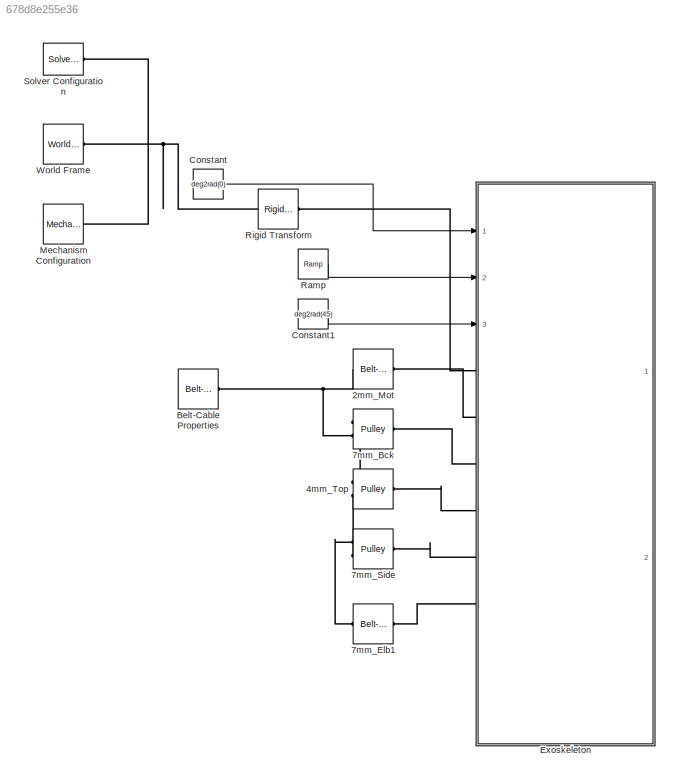
MODEL slx_678d8e255e36
KIND model
CONFIG AbsTol = 1e-3
CONFIG EnableMultiTasking = on
CONFIG FixedStep = auto
CONFIG MaxStep = auto
CONFIG MinStep = auto
CONFIG RelTol = 1e-3
CONFIG SampleTimeConstraint = Unconstrained
CONFIG SolverName = VariableStepAuto
CONFIG StartTime = 0.0
CONFIG StopTime = 10.0
BLOCK [Reference] 2mm_Mot  REF=sm_lib/Belts and Cables/Belt-Cable Spool
  Ports = [0, 0, 0, 0, 0, 1, 1]
  SourceBlock = sm_lib/Belts and Cables/Belt-Cable Spool
  SourceProductBaseCode = MS
  SourceType = Belt-Cable Spool
BLOCK [Reference] 4mm_Top  REF=sm_lib/Belts and Cables/Pulley
  Ports = [0, 0, 0, 0, 0, 1, 2]
  SourceBlock = sm_lib/Belts and Cables/Pulley
  SourceProductBaseCode = MS
  SourceType = Pulley
BLOCK [Reference] 7mm_Bck  REF=sm_lib/Belts and Cables/Pulley
  Ports = [0, 0, 0, 0, 0, 1, 2]
  SourceBlock = sm_lib/Belts and Cables/Pulley
  SourceProductBaseCode = MS
  SourceType = Pulley
BLOCK [Reference] 7mm_Elb1  REF=sm_lib/Belts and Cables/Belt-Cable Spool
  Ports = [0, 0, 0, 0, 0, 1, 1]
  SourceBlock = sm_lib/Belts and Cables/Belt-Cable Spool
  SourceProductBaseCode = MS
  SourceType = Belt-Cable Spool
BLOCK [Reference] 7mm_Side  REF=sm_lib/Belts and Cables/Pulley
  Ports = [0, 0, 0, 0, 0, 1, 2]
  SourceBlock = sm_lib/Belts and Cables/Pulley
  SourceProductBaseCode = MS
  SourceType = Pulley
BLOCK [Reference] Belt-Cable Properties  REF=sm_lib/Belts and Cables/Belt-Cable
Properties
  Ports = [0, 0, 0, 0, 0, 1]
  SourceBlock = sm_lib/Belts and Cables/Belt-Cable\nProperties
  SourceProductBaseCode = MS
  SourceType = Belt-Cable\nProperties
BLOCK [Constant] Constant
  Value = deg2rad(0)
BLOCK [Constant] Constant1
  Value = deg2rad(45)
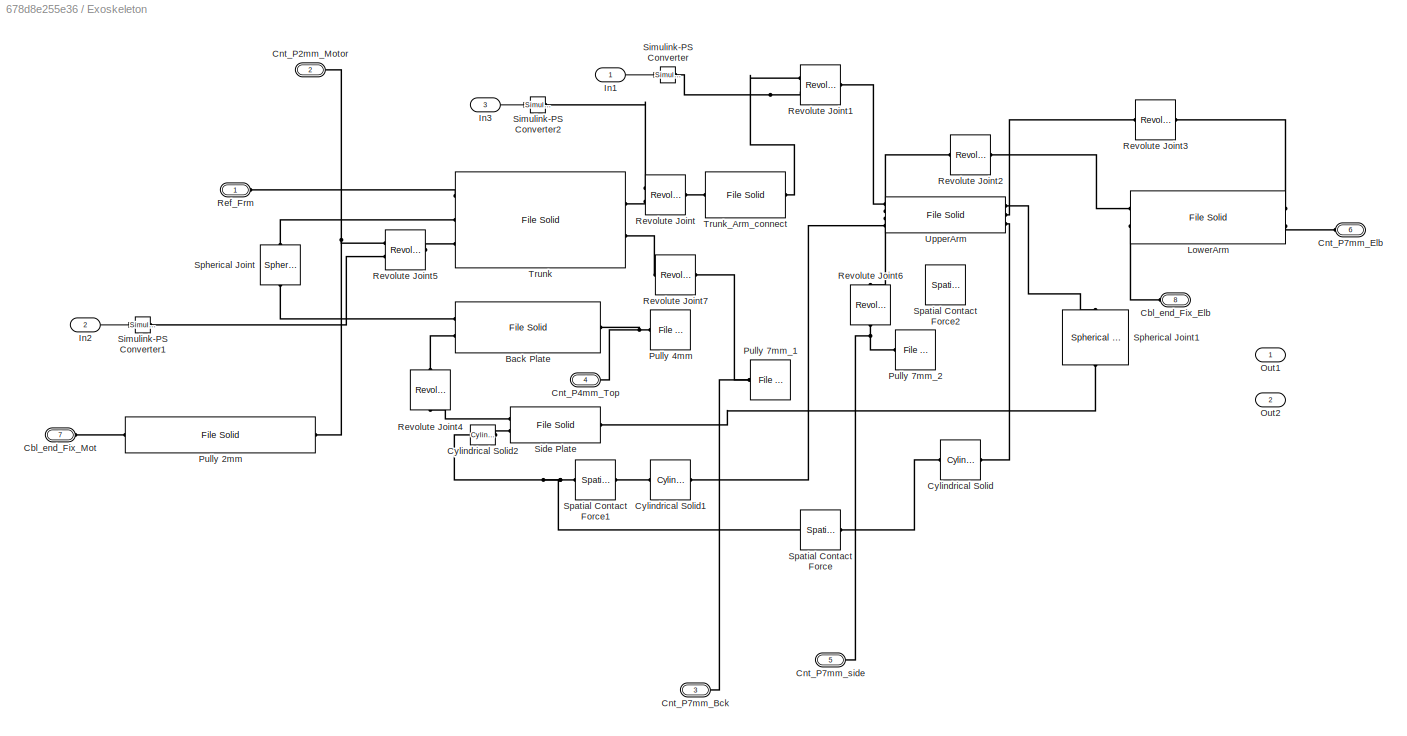
BLOCK [SubSystem] Exoskeleton
  Ports = [3, 2, 0, 0, 0, 8]
  RequestExecContextInheritance = off
BLOCK [Reference] Exoskeleton/Back Plate  REF=sm_lib/Body Elements/File Solid
  Ports = [0, 0, 0, 0, 0, 2, 1]
  SourceBlock = sm_lib/Body Elements/File Solid
  SourceProductBaseCode = MS
  SourceType = File Solid
BLOCK [PMIOPort] Exoskeleton/Cbl_end_Fix_Elb
  Port = 8
  Side = Left
BLOCK [PMIOPort] Exoskeleton/Cbl_end_Fix_Mot
  Port = 7
  Side = Left
BLOCK [PMIOPort] Exoskeleton/Cnt_P2mm_Motor
  Port = 2
  Side = Left
BLOCK [PMIOPort] Exoskeleton/Cnt_P4mm_Top
  Port = 4
  Side = Left
BLOCK [PMIOPort] Exoskeleton/Cnt_P7mm_Bck
  Port = 3
  Side = Left
BLOCK [PMIOPort] Exoskeleton/Cnt_P7mm_Elb
  Port = 6
  Side = Left
BLOCK [PMIOPort] Exoskeleton/Cnt_P7mm_side
  Port = 5
  Side = Left
BLOCK [Reference] Exoskeleton/Cylindrical Solid  REF=sm_lib/Body Elements/Cylindrical Solid
  Ports = [0, 0, 0, 0, 0, 1, 1]
  SourceBlock = sm_lib/Body Elements/Cylindrical Solid
  SourceProductBaseCode = MS
  SourceType = Cylindrical Solid
BLOCK [Reference] Exoskeleton/Cylindrical Solid1  REF=sm_lib/Body Elements/Cylindrical Solid
  Ports = [0, 0, 0, 0, 0, 1, 1]
  SourceBlock = sm_lib/Body Elements/Cylindrical Solid
  SourceProductBaseCode = MS
  SourceType = Cylindrical Solid
BLOCK [Reference] Exoskeleton/Cylindrical Solid2  REF=sm_lib/Body Elements/Cylindrical Solid
  Ports = [0, 0, 0, 0, 0, 1, 1]
  SourceBlock = sm_lib/Body Elements/Cylindrical Solid
  SourceProductBaseCode = MS
  SourceType = Cylindrical Solid
BLOCK [Inport] Exoskeleton/In1
BLOCK [Inport] Exoskeleton/In2
  Port = 2
BLOCK [Inport] Exoskeleton/In3
  Port = 3
BLOCK [Reference] Exoskeleton/LowerArm  REF=sm_lib/Body Elements/File Solid
  Ports = [0, 0, 0, 0, 0, 2, 2]
  SourceBlock = sm_lib/Body Elements/File Solid
  SourceProductBaseCode = MS
  SourceType = File Solid
BLOCK [Outport] Exoskeleton/Out1
BLOCK [Outport] Exoskeleton/Out2
  Port = 2
BLOCK [Reference] Exoskeleton/Pully 2mm  REF=sm_lib/Body Elements/File Solid
  Ports = [0, 0, 0, 0, 0, 1, 1]
  SourceBlock = sm_lib/Body Elements/File Solid
  SourceProductBaseCode = MS
  SourceType = File Solid
BLOCK [Reference] Exoskeleton/Pully 4mm  REF=sm_lib/Body Elements/File Solid
  Ports = [0, 0, 0, 0, 0, 1]
  SourceBlock = sm_lib/Body Elements/File Solid
  SourceProductBaseCode = MS
  SourceType = File Solid
BLOCK [Reference] Exoskeleton/Pully 7mm_1  REF=sm_lib/Body Elements/File Solid
  Ports = [0, 0, 0, 0, 0, 1]
  SourceBlock = sm_lib/Body Elements/File Solid
  SourceProductBaseCode = MS
  SourceType = File Solid
BLOCK [Reference] Exoskeleton/Pully 7mm_2  REF=sm_lib/Body Elements/File Solid
  Ports = [0, 0, 0, 0, 0, 1]
  SourceBlock = sm_lib/Body Elements/File Solid
  SourceProductBaseCode = MS
  SourceType = File Solid
BLOCK [PMIOPort] Exoskeleton/Ref_Frm
  Side = Left
BLOCK [Reference] Exoskeleton/Revolute Joint  REF=sm_lib/Joints/Revolute Joint
  Ports = [0, 0, 0, 0, 0, 2, 1]
  SourceBlock = sm_lib/Joints/Revolute Joint
  SourceProductBaseCode = MS
  SourceType = Revolute Joint
BLOCK [Reference] Exoskeleton/Revolute Joint1  REF=sm_lib/Joints/Revolute Joint
  Ports = [0, 0, 0, 0, 0, 2, 1]
  SourceBlock = sm_lib/Joints/Revolute Joint
  SourceProductBaseCode = MS
  SourceType = Revolute Joint
BLOCK [Reference] Exoskeleton/Revolute Joint2  REF=sm_lib/Joints/Revolute Joint
  Ports = [0, 0, 0, 0, 0, 1, 1]
  SourceBlock = sm_lib/Joints/Revolute Joint
  SourceProductBaseCode = MS
  SourceType = Revolute Joint
BLOCK [Reference] Exoskeleton/Revolute Joint3  REF=sm_lib/Joints/Revolute Joint
  Ports = [0, 0, 0, 0, 0, 1, 1]
  SourceBlock = sm_lib/Joints/Revolute Joint
  SourceProductBaseCode = MS
  SourceType = Revolute Joint
BLOCK [Reference] Exoskeleton/Revolute Joint4  REF=sm_lib/Joints/Revolute Joint
  NameLocation = left
  Ports = [0, 0, 0, 0, 0, 1, 1]
  SourceBlock = sm_lib/Joints/Revolute Joint
  SourceProductBaseCode = MS
  SourceType = Revolute Joint
BLOCK [Reference] Exoskeleton/Revolute Joint5  REF=sm_lib/Joints/Revolute Joint
  Ports = [0, 0, 0, 0, 0, 2, 1]
  SourceBlock = sm_lib/Joints/Revolute Joint
  SourceProductBaseCode = MS
  SourceType = Revolute Joint
BLOCK [Reference] Exoskeleton/Revolute Joint6  REF=sm_lib/Joints/Revolute Joint
  NameLocation = left
  Ports = [0, 0, 0, 0, 0, 1, 1]
  SourceBlock = sm_lib/Joints/Revolute Joint
  SourceProductBaseCode = MS
  SourceType = Revolute Joint
BLOCK [Reference] Exoskeleton/Revolute Joint7  REF=sm_lib/Joints/Revolute Joint
  Ports = [0, 0, 0, 0, 0, 1, 1]
  SourceBlock = sm_lib/Joints/Revolute Joint
  SourceProductBaseCode = MS
  SourceType = Revolute Joint
BLOCK [Reference] Exoskeleton/Side Plate  REF=sm_lib/Body Elements/File Solid
  Ports = [0, 0, 0, 0, 0, 2, 1]
  SourceBlock = sm_lib/Body Elements/File Solid
  SourceProductBaseCode = MS
  SourceType = File Solid
BLOCK [Reference] Exoskeleton/Simulink-PS Converter  REF=nesl_utility/Simulink-PS
Converter
  Ports = [1, 0, 0, 0, 0, 0, 1]
  SourceBlock = nesl_utility/Simulink-PS\nConverter
  SourceProductBaseCode = PW,SS
  SourceType = Simulink-PS\nConverter
BLOCK [Reference] Exoskeleton/Simulink-PS Converter1  REF=nesl_utility/Simulink-PS
Converter
  Ports = [1, 0, 0, 0, 0, 0, 1]
  SourceBlock = nesl_utility/Simulink-PS\nConverter
  SourceProductBaseCode = PW,SS
  SourceType = Simulink-PS\nConverter
BLOCK [Reference] Exoskeleton/Simulink-PS Converter2  REF=nesl_utility/Simulink-PS
Converter
  Ports = [1, 0, 0, 0, 0, 0, 1]
  SourceBlock = nesl_utility/Simulink-PS\nConverter
  SourceProductBaseCode = PW,SS
  SourceType = Simulink-PS\nConverter
BLOCK [Reference] Exoskeleton/Spatial Contact Force  REF=sm_lib/Forces and
Torques/Spatial
Contact Force
  Ports = [0, 0, 0, 0, 0, 1, 1]
  SourceBlock = sm_lib/Forces and\nTorques/Spatial\nContact Force
  SourceProductBaseCode = MS
  SourceType = Spatial\nContact Force
BLOCK [Reference] Exoskeleton/Spatial Contact Force1  REF=sm_lib/Forces and
Torques/Spatial
Contact Force
  Ports = [0, 0, 0, 0, 0, 1, 1]
  SourceBlock = sm_lib/Forces and\nTorques/Spatial\nContact Force
  SourceProductBaseCode = MS
  SourceType = Spatial\nContact Force
BLOCK [Reference] Exoskeleton/Spatial Contact Force2  REF=sm_lib/Forces and
Torques/Spatial
Contact Force
  Ports = [0, 0, 0, 0, 0, 1, 1]
  SourceBlock = sm_lib/Forces and\nTorques/Spatial\nContact Force
  SourceProductBaseCode = MS
  SourceType = Spatial\nContact Force
BLOCK [Reference] Exoskeleton/Spherical Joint  REF=sm_lib/Joints/Spherical
Joint
  NameLocation = left
  Ports = [0, 0, 0, 0, 0, 1, 1]
  SourceBlock = sm_lib/Joints/Spherical\nJoint
  SourceProductBaseCode = MS
  SourceType = Spherical\nJoint
BLOCK [Reference] Exoskeleton/Spherical Joint1  REF=sm_lib/Joints/Spherical
Joint
  NameLocation = left
  Ports = [0, 0, 0, 0, 0, 1, 1]
  SourceBlock = sm_lib/Joints/Spherical\nJoint
  SourceProductBaseCode = MS
  SourceType = Spherical\nJoint
BLOCK [Reference] Exoskeleton/Trunk  REF=sm_lib/Body Elements/File Solid
  Ports = [0, 0, 0, 0, 0, 3, 2]
  SourceBlock = sm_lib/Body Elements/File Solid
  SourceProductBaseCode = MS
  SourceType = File Solid
BLOCK [Reference] Exoskeleton/Trunk_Arm_connect  REF=sm_lib/Body Elements/File Solid
  Ports = [0, 0, 0, 0, 0, 1, 1]
  SourceBlock = sm_lib/Body Elements/File Solid
  SourceProductBaseCode = MS
  SourceType = File Solid
BLOCK [Reference] Exoskeleton/UpperArm  REF=sm_lib/Body Elements/File Solid
  Ports = [0, 0, 0, 0, 0, 4, 3]
  SourceBlock = sm_lib/Body Elements/File Solid
  SourceProductBaseCode = MS
  SourceType = File Solid
BLOCK [Reference] Mechanism Configuration  REF=sm_lib/Utilities/Mechanism
Configuration
  Ports = [0, 0, 0, 0, 0, 0, 1]
  SourceBlock = sm_lib/Utilities/Mechanism\nConfiguration
  SourceProductBaseCode = MS
  SourceType = Mechanism\nConfiguration
BLOCK [Reference] Ramp  REF=simulink/Sources/Ramp
  Ports = [0, 1]
  SourceBlock = simulink/Sources/Ramp
  SourceProductBaseCode = SL
  SourceType = Ramp
BLOCK [Reference] Rigid Transform  REF=sm_lib/Frames and
Transforms/Rigid
Transform
  Ports = [0, 0, 0, 0, 0, 1, 1]
  SourceBlock = sm_lib/Frames and\nTransforms/Rigid\nTransform
  SourceProductBaseCode = MS
  SourceType = Rigid\nTransform
BLOCK [Reference] Solver Configuration  REF=nesl_utility/Solver
Configuration
  Ports = [0, 0, 0, 0, 0, 0, 1]
  SourceBlock = nesl_utility/Solver\nConfiguration
  SourceProductBaseCode = PW,SS
  SourceType = Solver\nConfiguration
BLOCK [Reference] World Frame  REF=sm_lib/Frames and
Transforms/World Frame
  Ports = [0, 0, 0, 0, 0, 0, 1]
  SourceBlock = sm_lib/Frames and\nTransforms/World Frame
  SourceProductBaseCode = MS
  SourceType = World Frame
LINE Constant1:1 -> Exoskeleton:3
LINE Constant:1 -> Exoskeleton:1
LINE Exoskeleton/In1:1 -> Exoskeleton/Simulink-PS Converter:1
LINE Exoskeleton/In2:1 -> Exoskeleton/Simulink-PS Converter1:1
LINE Exoskeleton/In3:1 -> Exoskeleton/Simulink-PS Converter2:1
LINE Ramp:1 -> Exoskeleton:2
PLINE 2mm_Mot:LConn1 -- Exoskeleton:LConn2
PNET net1: 2mm_Mot:RConn1 -- 7mm_Bck:RConn2 -- Belt-Cable Properties:LConn1
PLINE 4mm_Top:LConn1 -- Exoskeleton:LConn4
PLINE 4mm_Top:RConn1 -- 7mm_Bck:RConn1
PLINE 4mm_Top:RConn2 -- 7mm_Side:RConn2
PLINE 7mm_Bck:LConn1 -- Exoskeleton:LConn3
PLINE 7mm_Elb1:LConn1 -- Exoskeleton:LConn6
PLINE 7mm_Elb1:RConn1 -- 7mm_Side:RConn1
PLINE 7mm_Side:LConn1 -- Exoskeleton:LConn5
PLINE Exoskeleton/Back Plate:LConn1 -- Exoskeleton/Spherical Joint:RConn1
PLINE Exoskeleton/Back Plate:LConn2 -- Exoskeleton/Revolute Joint4:LConn1
PNET net2: Exoskeleton/Back Plate:RConn1 -- Exoskeleton/Cnt_P4mm_Top:RConn1 -- Exoskeleton/Pully 4mm:LConn1
PLINE Exoskeleton/Cbl_end_Fix_Elb:RConn1 -- Exoskeleton/LowerArm:RConn2
PLINE Exoskeleton/Cbl_end_Fix_Mot:RConn1 -- Exoskeleton/Pully 2mm:RConn1
PNET net3: Exoskeleton/Cnt_P2mm_Motor:RConn1 -- Exoskeleton/Pully 2mm:LConn1 -- Exoskeleton/Revolute Joint5:LConn1
PNET net4: Exoskeleton/Cnt_P7mm_Bck:RConn1 -- Exoskeleton/Pully 7mm_1:LConn1 -- Exoskeleton/Revolute Joint7:RConn1
PLINE Exoskeleton/Cnt_P7mm_Elb:RConn1 -- Exoskeleton/LowerArm:LConn2
PNET net5: Exoskeleton/Cnt_P7mm_side:RConn1 -- Exoskeleton/Pully 7mm_2:LConn1 -- Exoskeleton/Revolute Joint6:RConn1
PLINE Exoskeleton/Cylindrical Solid1:LConn1 -- Exoskeleton/UpperArm:LConn4
PLINE Exoskeleton/Cylindrical Solid1:RConn1 -- Exoskeleton/Spatial Contact Force1:LConn1
PLINE Exoskeleton/Cylindrical Solid2:LConn1 -- Exoskeleton/Side Plate:LConn2
PNET net6: Exoskeleton/Cylindrical Solid2:RConn1 -- Exoskeleton/Spatial Contact Force1:RConn1 -- Exoskeleton/Spatial Contact Force:RConn1
PLINE Exoskeleton/Cylindrical Solid:LConn1 -- Exoskeleton/UpperArm:RConn3
PLINE Exoskeleton/Cylindrical Solid:RConn1 -- Exoskeleton/Spatial Contact Force:LConn1
PLINE Exoskeleton/LowerArm:LConn1 -- Exoskeleton/Revolute Joint3:RConn1
PLINE Exoskeleton/LowerArm:RConn1 -- Exoskeleton/Revolute Joint2:RConn1
PLINE Exoskeleton/Ref_Frm:RConn1 -- Exoskeleton/Trunk:LConn1
PLINE Exoskeleton/Revolute Joint1:LConn1 -- Exoskeleton/Trunk_Arm_connect:RConn1
PLINE Exoskeleton/Revolute Joint1:LConn2 -- Exoskeleton/Simulink-PS Converter:RConn1
PLINE Exoskeleton/Revolute Joint1:RConn1 -- Exoskeleton/UpperArm:LConn1
PLINE Exoskeleton/Revolute Joint2:LConn1 -- Exoskeleton/UpperArm:LConn2
PLINE Exoskeleton/Revolute Joint3:LConn1 -- Exoskeleton/UpperArm:RConn2
PLINE Exoskeleton/Revolute Joint4:RConn1 -- Exoskeleton/Side Plate:LConn1
PLINE Exoskeleton/Revolute Joint5:LConn2 -- Exoskeleton/Simulink-PS Converter1:RConn1
PLINE Exoskeleton/Revolute Joint5:RConn1 -- Exoskeleton/Trunk:LConn3
PLINE Exoskeleton/Revolute Joint6:LConn1 -- Exoskeleton/UpperArm:LConn3
PLINE Exoskeleton/Revolute Joint7:LConn1 -- Exoskeleton/Trunk:RConn2
PLINE Exoskeleton/Revolute Joint:LConn1 -- Exoskeleton/Trunk:RConn1
PLINE Exoskeleton/Revolute Joint:LConn2 -- Exoskeleton/Simulink-PS Converter2:RConn1
PLINE Exoskeleton/Revolute Joint:RConn1 -- Exoskeleton/Trunk_Arm_connect:LConn1
PLINE Exoskeleton/Side Plate:RConn1 -- Exoskeleton/Spherical Joint1:RConn1
PLINE Exoskeleton/Spherical Joint1:LConn1 -- Exoskeleton/UpperArm:RConn1
PLINE Exoskeleton/Spherical Joint:LConn1 -- Exoskeleton/Trunk:LConn2
PLINE Exoskeleton:LConn1 -- Rigid Transform:RConn1
PNET net7: Mechanism Configuration:RConn1 -- Rigid Transform:LConn1 -- Solver Configuration:RConn1 -- World Frame:RConn1
note: PNET lines group multi-terminal physical nets as a canonical sorted terminal list (undirected conserving connections); 2-terminal nets keep the pairwise PLINE form
